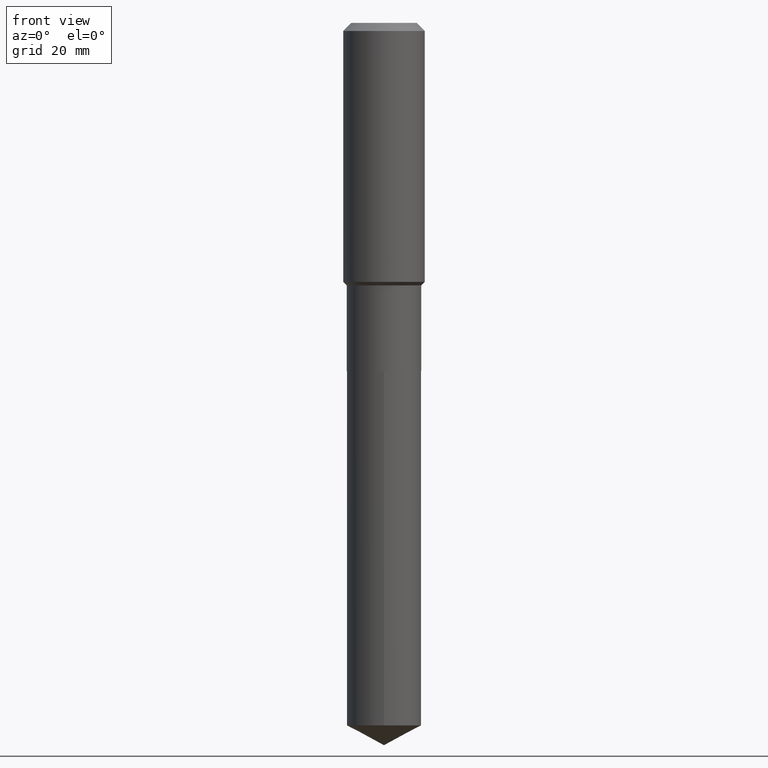
[diagram: clean part render]
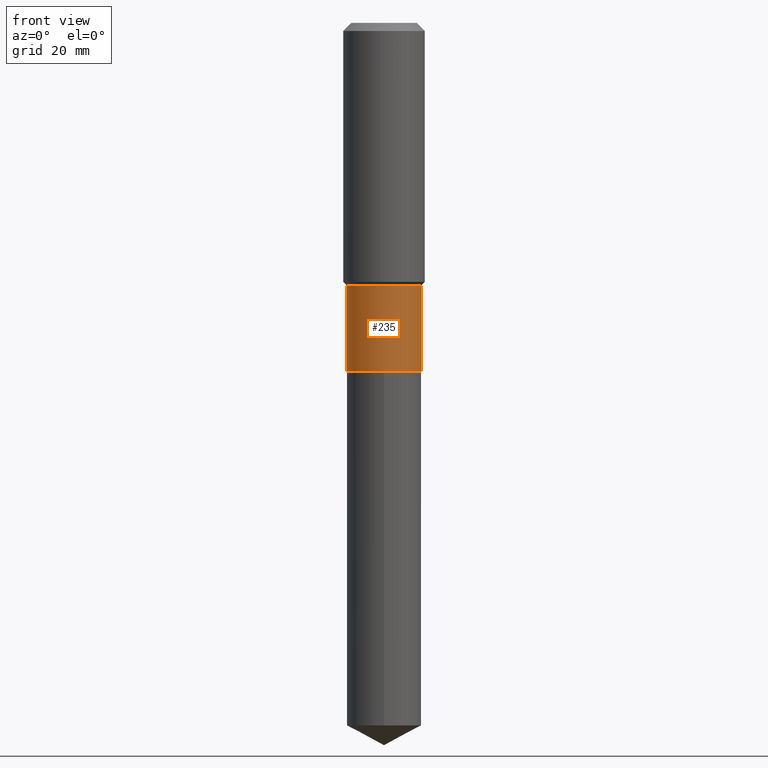
[diagram: same view with one face highlighted and labeled with its STEP entity id]
A machine part, front view. The second image highlights one B-rep face of the part: STEP entity #235.
In plain terms, the highlighted cylindrical surface (partial cylindrical patch) has radius 6.3995 mm, axis along (-0, 0, 1).
Its self-contained STEP definition (entity closure, byte-faithful):
#4 = DIRECTION ( 'NONE',  ( -2.445468806185136597E-29, 3.491481338843145583E-15, 1.000000000000000000 ) ) ;
#22 = FACE_OUTER_BOUND ( 'NONE', #478, .T. ) ;
#28 = DIRECTION ( 'NONE',  ( -2.445468806185136597E-29, 3.491481338843145583E-15, 1.000000000000000000 ) ) ;
#62 = CARTESIAN_POINT ( 'NONE',  ( -0.2519499999999999518, -5.417252505026333520E-15, -1.774799999999999933 ) ) ;
#63 = CIRCLE ( 'NONE', #436, 0.2519499999999999518 ) ;
#113 = VERTEX_POINT ( 'NONE', #323 ) ;
#114 = CARTESIAN_POINT ( 'NONE',  ( 4.340218037217379778E-29, -6.196681080178814403E-15, -1.774799999999999933 ) ) ;
#118 = VERTEX_POINT ( 'NONE', #62 ) ;
#146 = EDGE_CURVE ( 'NONE', #113, #118, #252, .T. ) ;
#161 = CIRCLE ( 'NONE', #377, 0.2519500000000000073 ) ;
#163 = ORIENTED_EDGE ( 'NONE', *, *, #338, .T. ) ;
#175 = DIRECTION ( 'NONE',  ( 1.000000000000000000, -6.982962677686267499E-15, 4.876176775795935793E-29 ) ) ;
#191 = VECTOR ( 'NONE', #361, 39.37007874015748143 ) ;
#192 = VERTEX_POINT ( 'NONE', #398 ) ;
#205 = ORIENTED_EDGE ( 'NONE', *, *, #146, .F. ) ;
#216 = DIRECTION ( 'NONE',  ( -2.445468806185136877E-29, 3.491481338843145188E-15, 1.000000000000000000 ) ) ;
#223 = EDGE_CURVE ( 'NONE', #192, #325, #297, .T. ) ;
#235 = ADVANCED_FACE ( 'NONE', ( #22 ), #473, .T. ) ;
#236 = CARTESIAN_POINT ( 'NONE',  ( 0.2519499999999999518, -7.956038526821868809E-15, -1.774799999999999933 ) ) ;
#239 = ORIENTED_EDGE ( 'NONE', *, *, #223, .T. ) ;
#252 = LINE ( 'NONE', #331, #490 ) ;
#268 = CARTESIAN_POINT ( 'NONE',  ( 5.756144475998574276E-29, -8.218248775368996789E-15, -2.353800000000000114 ) ) ;
#297 = LINE ( 'NONE', #447, #191 ) ;
#305 = DIRECTION ( 'NONE',  ( -2.445468806185136597E-29, 3.491481338843145583E-15, 1.000000000000000000 ) ) ;
#323 = CARTESIAN_POINT ( 'NONE',  ( -0.2519500000000000073, -5.417252505026333520E-15, -2.353800000000000114 ) ) ;
#325 = VERTEX_POINT ( 'NONE', #236 ) ;
#331 = CARTESIAN_POINT ( 'NONE',  ( -0.2519499999999999518, 1.790212422747572076E-15, -1.239325695989723260E-29 ) ) ;
#334 = DIRECTION ( 'NONE',  ( 1.000000000000000000, -6.982962677686267499E-15, 0.000000000000000000 ) ) ;
#338 = EDGE_CURVE ( 'NONE', #113, #192, #161, .T. ) ;
#343 = DIRECTION ( 'NONE',  ( 1.000000000000000000, -6.982962677686265922E-15, 0.000000000000000000 ) ) ;
#361 = DIRECTION ( 'NONE',  ( -2.445468806185136877E-29, 3.491481338843145188E-15, 1.000000000000000000 ) ) ;
#371 = EDGE_CURVE ( 'NONE', #118, #325, #63, .T. ) ;
#377 = AXIS2_PLACEMENT_3D ( 'NONE', #268, #305, #343 ) ;
#382 = ORIENTED_EDGE ( 'NONE', *, *, #371, .F. ) ;
#398 = CARTESIAN_POINT ( 'NONE',  ( 0.2519500000000000073, -9.977606222012051983E-15, -2.353800000000000114 ) ) ;
#436 = AXIS2_PLACEMENT_3D ( 'NONE', #114, #4, #334 ) ;
#440 = CARTESIAN_POINT ( 'NONE',  ( 0.000000000000000000, 0.000000000000000000, 0.000000000000000000 ) ) ;
#447 = CARTESIAN_POINT ( 'NONE',  ( 0.2519499999999999518, -1.759357446643054800E-15, 1.228552738661785732E-29 ) ) ;
#460 = AXIS2_PLACEMENT_3D ( 'NONE', #440, #28, #175 ) ;
#473 = CYLINDRICAL_SURFACE ( 'NONE', #460, 0.2519499999999999518 ) ;
#478 = EDGE_LOOP ( 'NONE', ( #205, #163, #239, #382 ) ) ;
#490 = VECTOR ( 'NONE', #216, 39.37007874015748143 ) ;